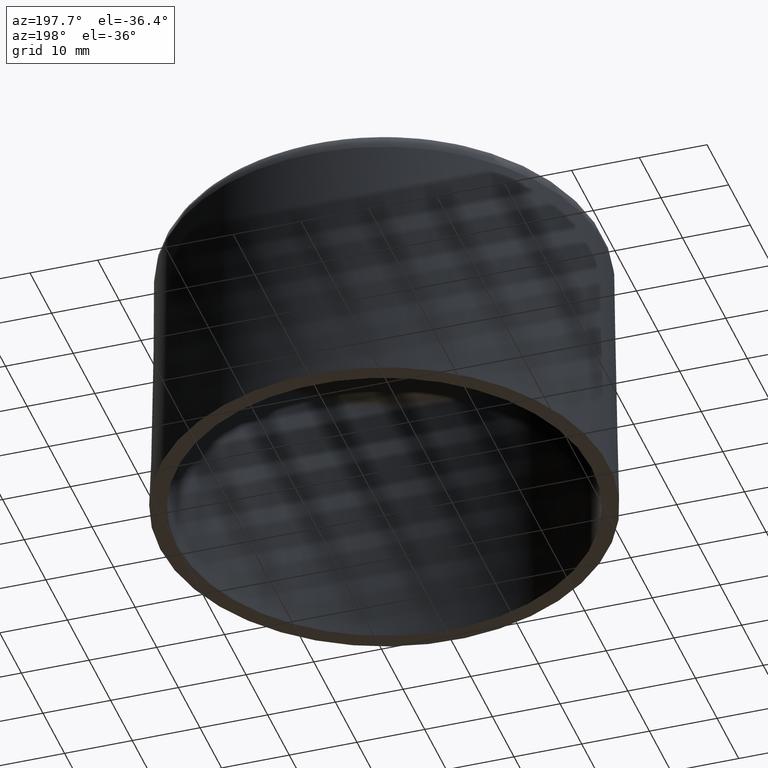
[diagram: clean part render]
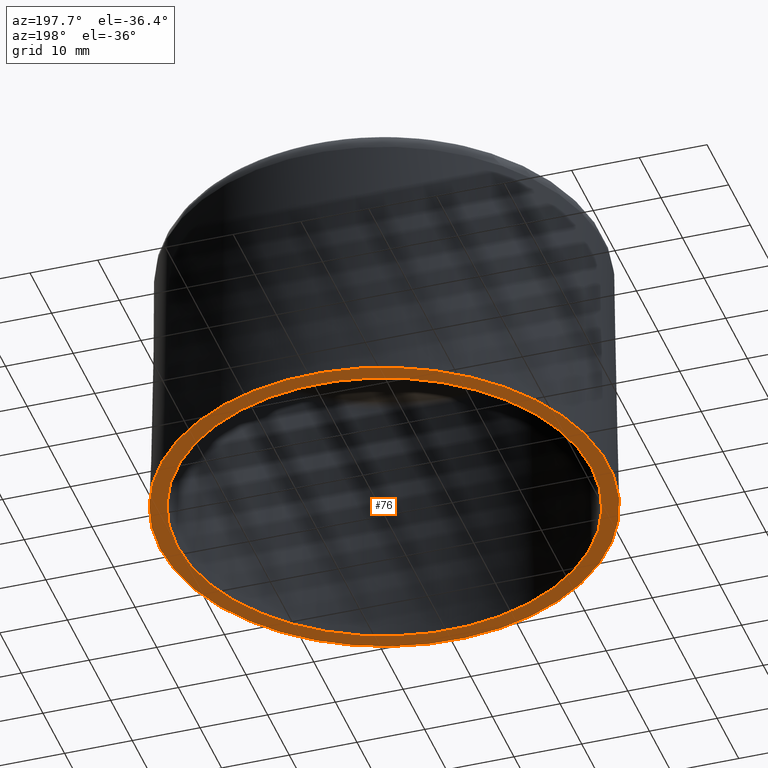
[diagram: same view with one face highlighted and labeled with its STEP entity id]
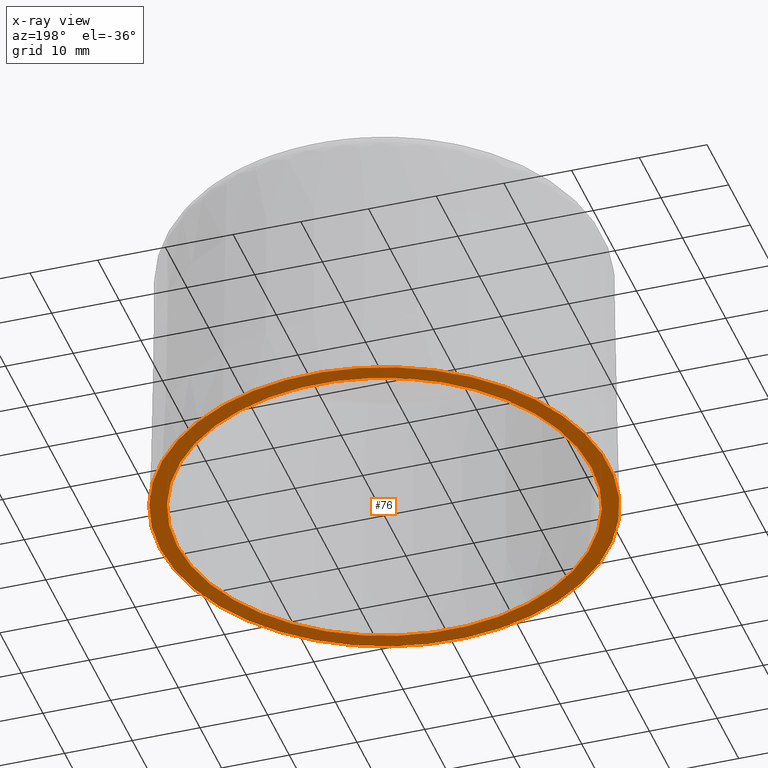
[diagram: x-ray of the same camera — body ghosted, the highlighted face saturated]
A machine part, auxiliary view. The second image highlights one B-rep face of the part: STEP entity #76.
The next image is the same camera in x-ray: the body ghosted, the highlighted face saturated — about 0% of this face is hidden behind the body in this view.
In plain terms, the highlighted planar face has unit normal (-0, 0, 1).
Its self-contained STEP definition (entity closure, byte-faithful):
#76 = ADVANCED_FACE( '', ( #152, #153 ), #154, .F. );
#152 = FACE_OUTER_BOUND( '', #301, .T. );
#153 = FACE_BOUND( '', #302, .T. );
#154 = PLANE( '', #303 );
#301 = EDGE_LOOP( '', ( #498 ) );
#302 = EDGE_LOOP( '', ( #499 ) );
#303 = AXIS2_PLACEMENT_3D( '', #500, #501, #502 );
#498 = ORIENTED_EDGE( '', *, *, #1083, .F. );
#499 = ORIENTED_EDGE( '', *, *, #1084, .T. );
#500 = CARTESIAN_POINT( '', ( 6.37306017241811E-031, 30.5991012985644, -1.04083408558608E-014 ) );
#501 = DIRECTION( '', ( -6.12303176911189E-017, 0.000000000000000, 1.00000000000000 ) );
#502 = DIRECTION( '', ( 1.00000000000000, 0.000000000000000, 6.12303176911189E-017 ) );
#1083 = EDGE_CURVE( '', #1272, #1272, #1273, .T. );
#1084 = EDGE_CURVE( '', #1274, #1274, #1275, .T. );
#1272 = VERTEX_POINT( '', #1646 );
#1273 = CIRCLE( '', #1647, 33.0994821186741 );
#1274 = VERTEX_POINT( '', #1648 );
#1275 = CIRCLE( '', #1649, 30.5991012985644 );
#1646 = CARTESIAN_POINT( '', ( 33.0994821186741, 0.000000000000000, 2.02669180553792E-015 ) );
#1647 = AXIS2_PLACEMENT_3D( '', #2093, #2094, #2095 );
#1648 = CARTESIAN_POINT( '', ( 30.5991012985644, 0.000000000000000, -1.89430890181479E-014 ) );
#1649 = AXIS2_PLACEMENT_3D( '', #2096, #2097, #2098 );
#2093 = CARTESIAN_POINT( '', ( 0.000000000000000, 0.000000000000000, 0.000000000000000 ) );
#2094 = DIRECTION( '', ( -6.12303176911189E-017, 0.000000000000000, 1.00000000000000 ) );
#2095 = DIRECTION( '', ( 1.00000000000000, 0.000000000000000, 6.12303176911189E-017 ) );
#2096 = CARTESIAN_POINT( '', ( 1.27461203448362E-030, 0.000000000000000, -2.08166817117217E-014 ) );
#2097 = DIRECTION( '', ( -6.12303176911189E-017, 0.000000000000000, 1.00000000000000 ) );
#2098 = DIRECTION( '', ( 1.00000000000000, 0.000000000000000, 6.12303176911189E-017 ) );